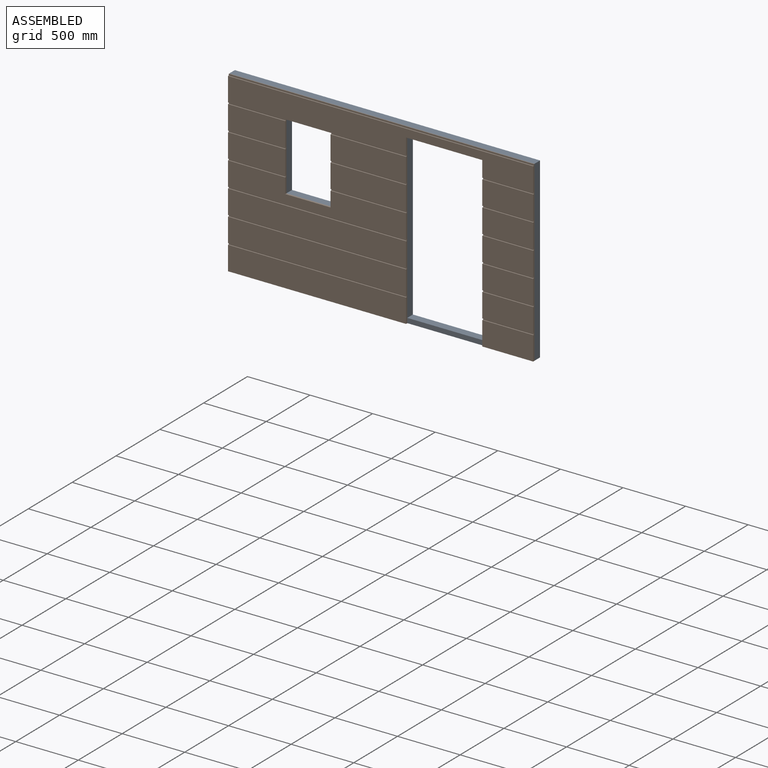
[diagram: assembled view]
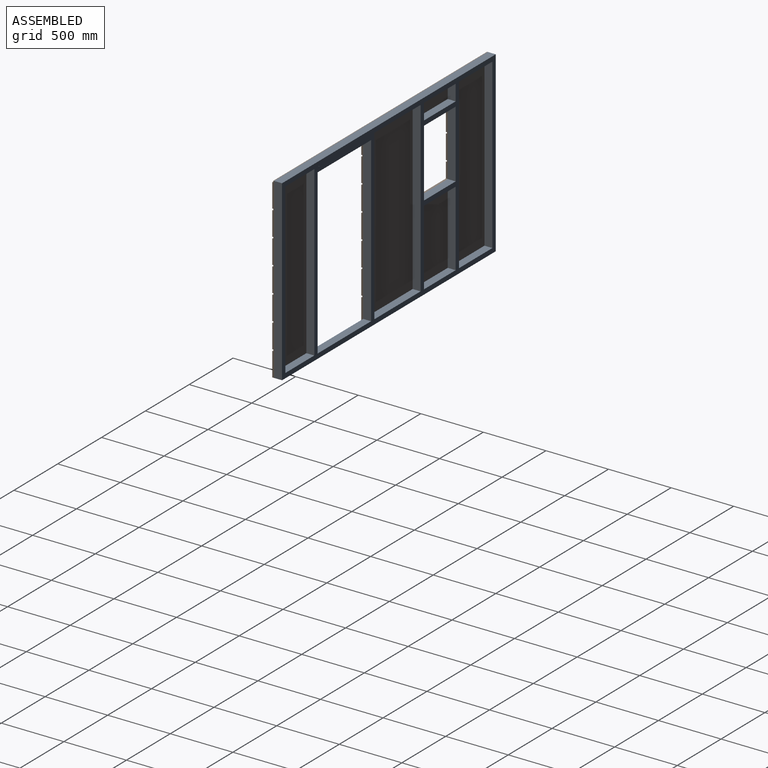
[diagram: assembled view, second angle]
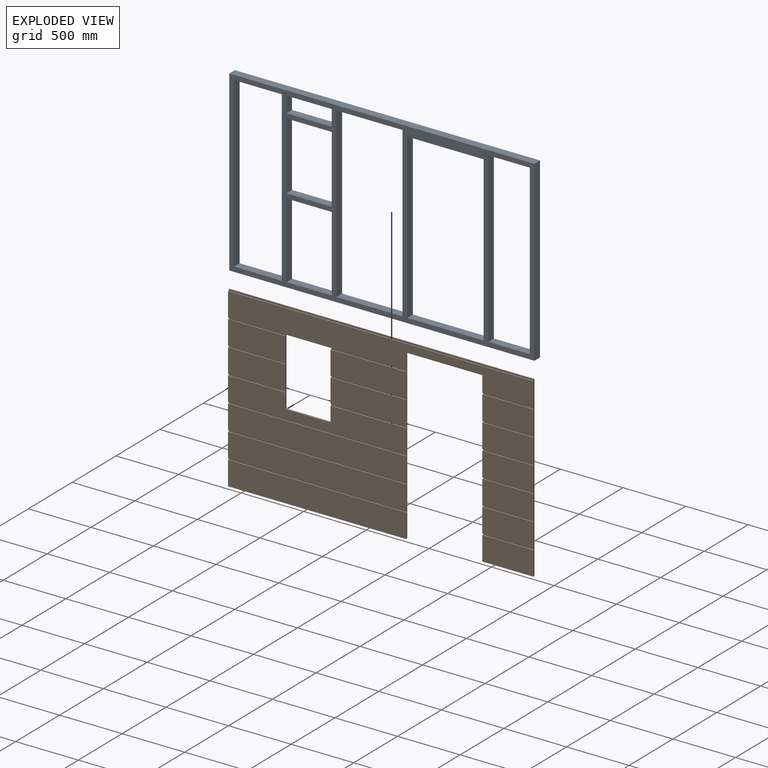
[diagram: exploded view]
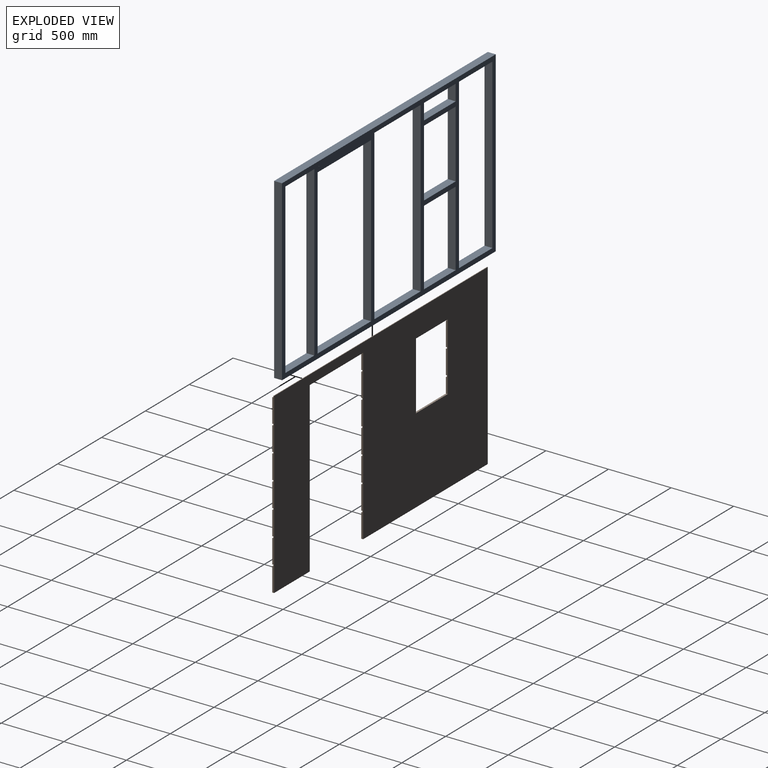
[diagram: exploded view, second angle]
ASSEMBLY  parts=2 mates=3
PART A: 38 faces, bbox 2438.4x63.5x1422.4 mm
  f0: plane 539.75x63.5mm, normal (-1,0,0), area 34274.1mm2, adj f1,f35,f36,f37
  f1: plane 361.95x63.5mm, normal (0,0,1), area 22983.8mm2, adj f0,f2,f36,f37
  f2: plane 539.75x63.5mm, normal (1,0,0), area 34274.1mm2, adj f1,f35,f36,f37
  f3: plane 127x63.5mm, normal (1,0,0), area 8064.5mm2, adj f4,f27,f36,f37
  f4: plane 361.95x63.5mm, normal (0,0,-1), area 22983.8mm2, adj f3,f5,f36,f37
  f5: plane 127x63.5mm, normal (-1,0,0), area 8064.5mm2, adj f4,f27,f36,f37
  f6: plane 603.25x63.5mm, normal (-1,0,0), area 38306.4mm2, adj f7,f28,f36,f37
  f7: plane 361.95x63.5mm, normal (0,0,1), area 22983.8mm2, adj f6,f8,f36,f37
  f8: plane 603.25x63.5mm, normal (1,0,0), area 38306.4mm2, adj f7,f28,f36,f37
  f9: plane 63.5x0.03mm, normal (1,0,0), area 1.6mm2, adj f10,f29,f36,f37
  f10: plane 609.6x63.5mm, normal (0,0,-1), area 38709.6mm2, adj f9,f11,f36,f37
  f11: plane 63.5x0.03mm, normal (-1,0,0), area 1.6mm2, adj f10,f29,f36,f37
  f12: plane 527.05x63.5mm, normal (0,0,1), area 33467.7mm2, adj f13,f30,f36,f37
  f13: plane 1346.2x63.5mm, normal (1,0,0), area 85483.7mm2, adj f12,f14,f36,f37
  f14: plane 527.05x63.5mm, normal (0,0,-1), area 33467.7mm2, adj f13,f30,f36,f37
  f15: plane 1346.2x63.5mm, normal (1,0,0), area 85483.7mm2, adj f16,f31,f36,f37
  f16: plane 330.2x63.5mm, normal (0,0,-1), area 20967.7mm2, adj f15,f17,f36,f37
  f17: plane 1346.2x63.5mm, normal (-1,0,0), area 85483.7mm2, adj f16,f31,f36,f37
  f18: plane 1346.2x63.5mm, normal (-1,0,0), area 85483.7mm2, adj f19,f32,f36,f37
  f19: plane 381x63.5mm, normal (0,0,1), area 24193.5mm2, adj f18,f20,f36,f37
  f20: plane 1346.2x63.5mm, normal (1,0,0), area 85483.7mm2, adj f19,f32,f36,f37
  f21: plane 1308.07x63.5mm, normal (-1,0,0), area 83062.7mm2, adj f22,f33,f36,f37
  f22: plane 609.6x63.5mm, normal (0,0,1), area 38709.6mm2, adj f21,f23,f36,f37
  f23: plane 1308.07x63.5mm, normal (1,0,0), area 83062.7mm2, adj f22,f33,f36,f37
  f24: plane 1422.4x63.5mm, normal (1,0,0), area 90322.4mm2, adj f25,f34,f36,f37
  f25: plane 2438.4x63.5mm, normal (0,0,1), area 154838.4mm2, adj f24,f26,f36,f37
  f26: plane 1422.4x63.5mm, normal (-1,0,0), area 90322.4mm2, adj f25,f34,f36,f37
  f27: plane 361.95x63.5mm, normal (0,0,1), area 22983.8mm2, adj f3,f5,f36,f37
  f28: plane 361.95x63.5mm, normal (0,0,-1), area 22983.8mm2, adj f6,f8,f36,f37
  f29: plane 609.6x63.5mm, normal (0,0,1), area 38709.6mm2, adj f9,f11,f36,f37
  f30: plane 1346.2x63.5mm, normal (-1,0,0), area 85483.7mm2, adj f12,f14,f36,f37
  f31: plane 330.2x63.5mm, normal (0,0,1), area 20967.7mm2, adj f15,f17,f36,f37
  f32: plane 381x63.5mm, normal (0,0,-1), area 24193.5mm2, adj f18,f20,f36,f37
  f33: plane 609.6x63.5mm, normal (0,0,-1), area 38709.6mm2, adj f21,f23,f36,f37
  f34: plane 2438.4x63.5mm, normal (0,0,-1), area 154838.4mm2, adj f24,f26,f36,f37
  f35: plane 361.95x63.5mm, normal (0,0,-1), area 22983.8mm2, adj f0,f2,f36,f37
  f36: plane 2438.4x1422.4mm, normal (0,-1,0), area 544353.7mm2, adj f0,f1,f2,f3,f4,f5,f6,f7
  f37: plane 2438.4x1422.4mm, normal (0,1,0), area 544353.7mm2, adj f0,f1,f2,f3,f4,f5,f6,f7
PART B: 73 faces, bbox 2438.4x14.7x1422.4 mm
  f0: plane 1422.4x14.68mm, normal (1,0,0), area 20092.2mm2, adj f2,f3,f6,f9,f11,f13,f15,f18
  f1: plane 1422.4x14.68mm, normal (-1,0,0), area 20092.2mm2, adj f2,f3,f4,f7,f10,f12,f14,f16
  f2: plane 2438.4x5.79mm, normal (0,0,1), area 14121.3mm2, adj f0,f1,f27,f72
  f3: plane 2438.4x190.5mm, normal (0,-1,0), area 387111.5mm2, adj f0,f1,f17,f20,f23,f25,f68,f71
  f4: plane 457.2x190.5mm, normal (0,-1,0), area 87096.6mm2, adj f1,f22,f59,f67
  f5: plane 603.25x190.5mm, normal (0,-1,0), area 114919.1mm2, adj f20,f24,f56,f65
  f6: plane 406.4x190.5mm, normal (0,-1,0), area 77419.2mm2, adj f0,f17,f62,f69
  f7: plane 457.2x190.5mm, normal (0,-1,0), area 87096.6mm2, adj f1,f22,f50,f60
  f8: plane 603.25x190.5mm, normal (0,-1,0), area 114919.1mm2, adj f20,f24,f47,f57
  f9: plane 406.4x190.5mm, normal (0,-1,0), area 77419.2mm2, adj f0,f17,f53,f61
  f10: plane 1422.4x190.5mm, normal (0,-1,0), area 227297.9mm2, adj f1,f20,f21,f22,f24,f41,f48,f51
  f11: plane 406.4x190.5mm, normal (0,-1,0), area 77419.2mm2, adj f0,f17,f44,f52
  f12: plane 1422.4x190.5mm, normal (0,-1,0), area 270967.2mm2, adj f1,f20,f35,f42
  f13: plane 406.4x190.5mm, normal (0,-1,0), area 77419.2mm2, adj f0,f17,f38,f43
  f14: plane 1422.4x190.5mm, normal (0,-1,0), area 270967.2mm2, adj f1,f20,f29,f36
  f15: plane 406.4x190.5mm, normal (0,-1,0), area 77419.2mm2, adj f0,f17,f33,f37
  f16: plane 1422.4x190.5mm, normal (0,-1,0), area 270967.2mm2, adj f1,f19,f20,f30
  f17: plane 1346.17x14.68mm, normal (-1,0,0), area 19086mm2, adj f3,f6,f9,f11,f13,f15,f18,f25
  f18: plane 406.4x14.68mm, normal (0,0,-1), area 5966.4mm2, adj f0,f17,f26,f27
  f19: plane 1422.4x14.68mm, normal (0,0,-1), area 20882.5mm2, adj f1,f16,f20,f27
  f20: plane 1346.17x14.68mm, normal (1,0,0), area 19086mm2, adj f3,f5,f8,f10,f12,f14,f16,f19
  f21: plane 361.95x14.68mm, normal (0,0,1), area 5313.9mm2, adj f10,f22,f24,f27
  f22: plane 539.75x14.68mm, normal (1,0,0), area 7585.5mm2, adj f4,f7,f10,f21,f23,f27,f49,f50
  f23: plane 1422.4x14.68mm, normal (0,0,-1), area 14741.3mm2, adj f1,f3,f20,f22,f24,f27,f64,f66
  f24: plane 539.75x14.68mm, normal (-1,0,0), area 7585.5mm2, adj f5,f8,f10,f21,f23,f27,f46,f47
  f25: plane 609.6x14.68mm, normal (0,0,-1), area 8949.7mm2, adj f3,f17,f20,f27
  f26: plane 406.4x190.5mm, normal (0,-1,0), area 77419.2mm2, adj f0,f17,f18,f32
  f27: plane 2438.4x1422.4mm, normal (0,1,0), area 2452389.6mm2, adj f0,f1,f2,f17,f18,f19,f20,f21
  f28: plane 1422.4x12.7mm, normal (0,-1,0), area 18064.5mm2, adj f1,f20,f29,f30
  f29: plane 1422.4x8.89mm, normal (0,0,-1), area 12645.1mm2, adj f1,f14,f20,f28
  f30: plane 1422.4x8.89mm, normal (0,0,1), area 12645.1mm2, adj f1,f16,f20,f28
  f31: plane 406.4x12.7mm, normal (0,-1,0), area 5161.3mm2, adj f0,f17,f32,f33
  f32: plane 406.4x8.89mm, normal (0,0,1), area 3612.9mm2, adj f0,f17,f26,f31
  f33: plane 406.4x8.89mm, normal (0,0,-1), area 3612.9mm2, adj f0,f15,f17,f31
  f34: plane 1422.4x12.7mm, normal (0,-1,0), area 18064.5mm2, adj f1,f20,f35,f36
  f35: plane 1422.4x8.89mm, normal (0,0,-1), area 12645.1mm2, adj f1,f12,f20,f34
  f36: plane 1422.4x8.89mm, normal (0,0,1), area 12645.1mm2, adj f1,f14,f20,f34
  f37: plane 406.4x8.89mm, normal (0,0,1), area 3612.9mm2, adj f0,f15,f17,f39
  f38: plane 406.4x8.89mm, normal (0,0,-1), area 3612.9mm2, adj f0,f13,f17,f39
  f39: plane 406.4x12.7mm, normal (0,-1,0), area 5161.3mm2, adj f0,f17,f37,f38
  f40: plane 1422.4x12.7mm, normal (0,-1,0), area 18064.5mm2, adj f1,f20,f41,f42
  f41: plane 1422.4x8.89mm, normal (0,0,-1), area 12645.1mm2, adj f1,f10,f20,f40
  f42: plane 1422.4x8.89mm, normal (0,0,1), area 12645.1mm2, adj f1,f12,f20,f40
  f43: plane 406.4x8.89mm, normal (0,0,1), area 3612.9mm2, adj f0,f13,f17,f45
  f44: plane 406.4x8.89mm, normal (0,0,-1), area 3612.9mm2, adj f0,f11,f17,f45
  f45: plane 406.4x12.7mm, normal (0,-1,0), area 5161.3mm2, adj f0,f17,f43,f44
  f46: plane 603.25x12.7mm, normal (0,-1,0), area 7661.3mm2, adj f20,f24,f47,f48
  f47: plane 603.25x8.89mm, normal (0,0,-1), area 5362.9mm2, adj f8,f20,f24,f46
  f48: plane 603.25x8.89mm, normal (0,0,1), area 5362.9mm2, adj f10,f20,f24,f46
  f49: plane 457.2x12.7mm, normal (0,-1,0), area 5806.4mm2, adj f1,f22,f50,f51
  f50: plane 457.2x8.89mm, normal (0,0,-1), area 4064.5mm2, adj f1,f7,f22,f49
  f51: plane 457.2x8.89mm, normal (0,0,1), area 4064.5mm2, adj f1,f10,f22,f49
  f52: plane 406.4x8.89mm, normal (0,0,1), area 3612.9mm2, adj f0,f11,f17,f54
  f53: plane 406.4x8.89mm, normal (0,0,-1), area 3612.9mm2, adj f0,f9,f17,f54
  f54: plane 406.4x12.7mm, normal (0,-1,0), area 5161.3mm2, adj f0,f17,f52,f53
  f55: plane 603.25x12.7mm, normal (0,-1,0), area 7661.3mm2, adj f20,f24,f56,f57
  f56: plane 603.25x8.89mm, normal (0,0,-1), area 5362.9mm2, adj f5,f20,f24,f55
  f57: plane 603.25x8.89mm, normal (0,0,1), area 5362.9mm2, adj f8,f20,f24,f55
  f58: plane 457.2x12.7mm, normal (0,-1,0), area 5806.4mm2, adj f1,f22,f59,f60
  f59: plane 457.2x8.89mm, normal (0,0,-1), area 4064.5mm2, adj f1,f4,f22,f58
  f60: plane 457.2x8.89mm, normal (0,0,1), area 4064.5mm2, adj f1,f7,f22,f58
  f61: plane 406.4x8.89mm, normal (0,0,1), area 3612.9mm2, adj f0,f9,f17,f63
  f62: plane 406.4x8.89mm, normal (0,0,-1), area 3612.9mm2, adj f0,f6,f17,f63
  f63: plane 406.4x12.7mm, normal (0,-1,0), area 5161.3mm2, adj f0,f17,f61,f62
  f64: plane 603.25x12.7mm, normal (0,-1,0), area 7661.3mm2, adj f20,f23,f24,f65
  f65: plane 603.25x8.89mm, normal (0,0,1), area 5362.9mm2, adj f5,f20,f24,f64
  f66: plane 457.2x12.7mm, normal (0,-1,0), area 5806.4mm2, adj f1,f22,f23,f67
  f67: plane 457.2x8.89mm, normal (0,0,1), area 4064.5mm2, adj f1,f4,f22,f66
  f68: plane 406.4x8.89mm, normal (0,0,-1), area 3612.9mm2, adj f0,f3,f17,f70
  f69: plane 406.4x8.89mm, normal (0,0,1), area 3612.9mm2, adj f0,f6,f17,f70
  f70: plane 406.4x12.7mm, normal (0,-1,0), area 5161.3mm2, adj f0,f17,f68,f69
  f71: plane 2438.4x8.89mm, normal (0,0,1), area 21677.4mm2, adj f0,f1,f3,f72
  f72: plane 2438.4x12.7mm, normal (0,-1,0), area 30967.7mm2, adj f0,f1,f2,f71
PLACE A at identity
PLACE B t=(0,-63.5,0)mm
MATE planar A.f34 <-> B.f18  axis (0,0,-1) through (1219.2,-31.75,0)mm
MATE planar B.f27 <-> A.f36  axis (0,1,0) through (1095.5,-63.5,704.98)mm
MATE planar A.f26 <-> B.f1  axis (-1,0,0) through (0,-31.75,711.2)mm
